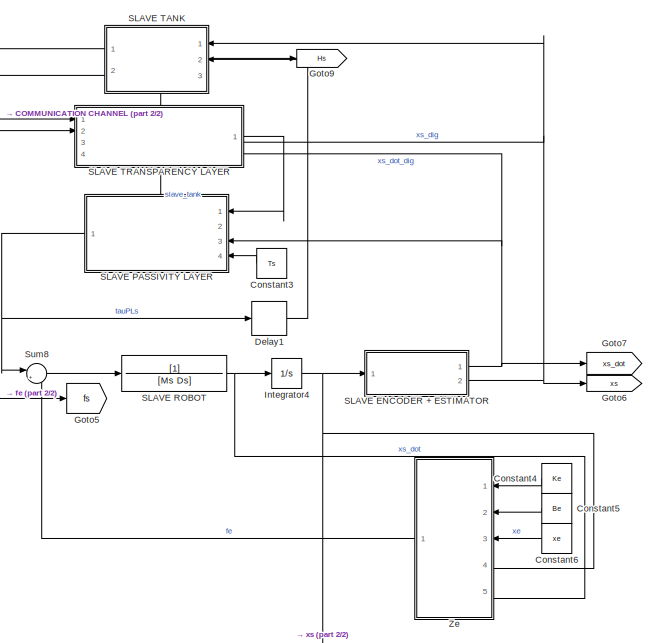
[diagram: root canvas - part 1/2, right side, full height]
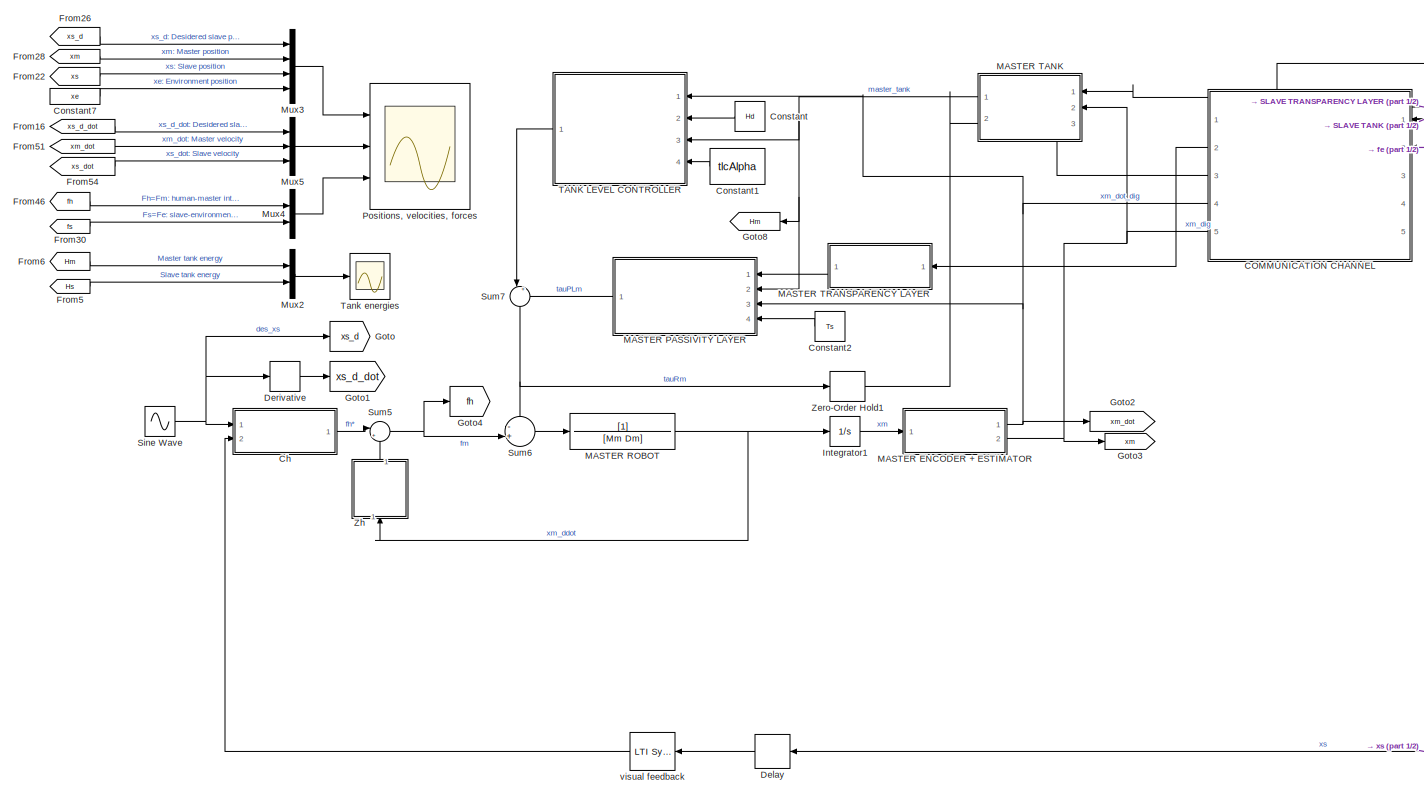
[diagram: root canvas - part 2/2, left side, full height]
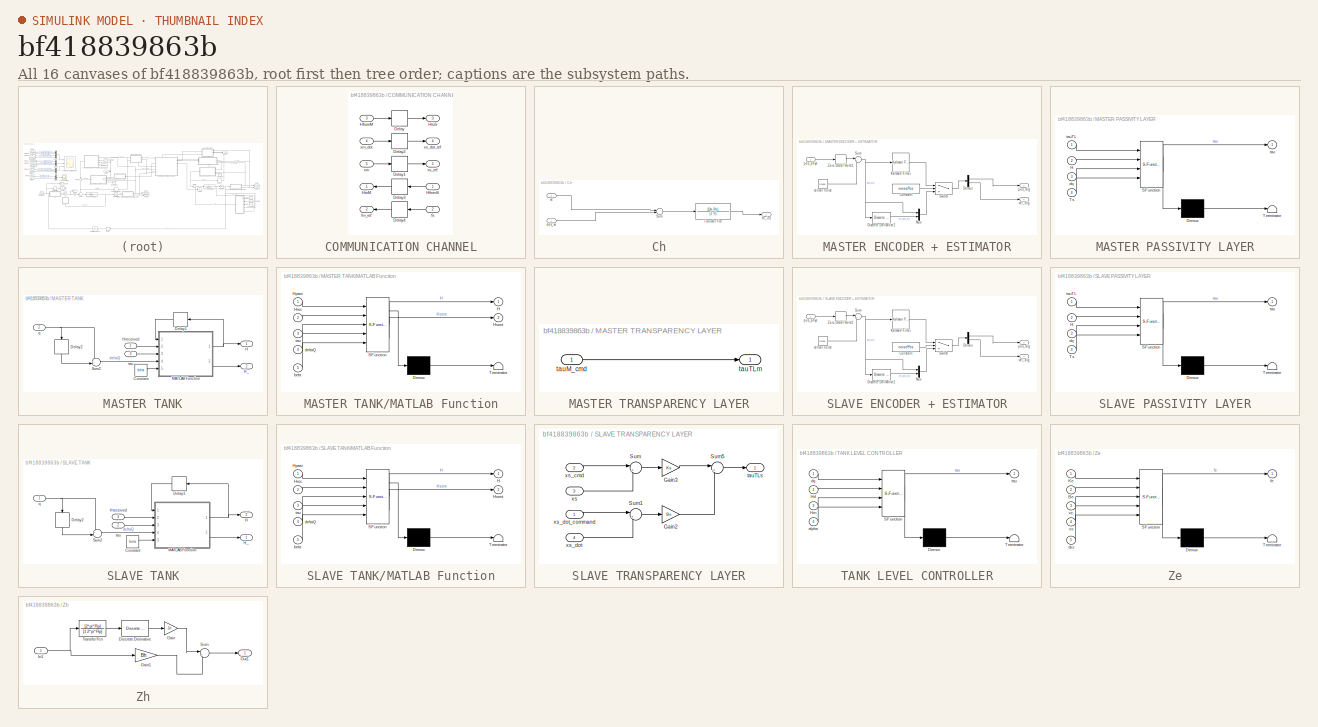
[diagram: thumbnail index - all 16 canvases of the model, root first then tree order]
MODEL slx_bf418839863b
KIND model
CONFIG AbsTol = auto
CONFIG EnableMultiTasking = off
CONFIG FixedStep = auto
CONFIG MaxStep = auto
CONFIG MinStep = auto
CONFIG RelTol = 1e-6
CONFIG SampleTimeConstraint = Unconstrained
CONFIG SolverName = VariableStepAuto
CONFIG StartTime = 0.0
CONFIG StopTime = 30
BLOCK [SubSystem] COMMUNICATION CHANNEL
  PortSchema = {"entries":[{"content":{"sides":[{"content":{"connectorIds":["In1","Out3","Out4","Out5","In2"]},"type":"ConnectorPlacement.EquallySpacedRectSide","uuid":"1c070cf8-9aa7-4f7b-8e2f-2632c2893f69"},{"content":{"connectorIds":["In3","Out1","Out2","In4","In5"],"side":"RIGHT"},"type":"ConnectorPlacement.EquallySpacedRectSide","uuid":"32173565-3523-4dfc-9820-763c87098354"},{"content":{"connectorIds":[],"si...<+436ch>
  Ports = [5, 5]
  RequestExecContextInheritance = off
BLOCK [Delay] COMMUNICATION CHANNEL/Delay
  DelayLength = d
  InputPortMap = u0
  Ports = [1, 1]
  SampleTime = Ts
BLOCK [Delay] COMMUNICATION CHANNEL/Delay1
  DelayLength = d
  InputPortMap = u0
  Ports = [1, 1]
  SampleTime = Ts
BLOCK [Delay] COMMUNICATION CHANNEL/Delay2
  DelayLength = d
  InputPortMap = u0
  Ports = [1, 1]
  SampleTime = Ts
BLOCK [Delay] COMMUNICATION CHANNEL/Delay3
  DelayLength = d
  InputPortMap = u0
  Ports = [1, 1]
  SampleTime = Ts
BLOCK [Delay] COMMUNICATION CHANNEL/Delay4
  DelayLength = d
  InputPortMap = u0
  Ports = [1, 1]
  SampleTime = Ts
BLOCK [Inport] COMMUNICATION CHANNEL/HfromM
  Port = 3
BLOCK [Inport] COMMUNICATION CHANNEL/HfromS
BLOCK [Outport] COMMUNICATION CHANNEL/HtoM
BLOCK [Outport] COMMUNICATION CHANNEL/HtoS
  Port = 3
BLOCK [Outport] COMMUNICATION CHANNEL/fm_ref
  Port = 2
BLOCK [Inport] COMMUNICATION CHANNEL/fs
  Port = 2
BLOCK [Inport] COMMUNICATION CHANNEL/xm
  Port = 5
BLOCK [Inport] COMMUNICATION CHANNEL/xm_dot
  Port = 4
BLOCK [Outport] COMMUNICATION CHANNEL/xs_dot_ref
  Port = 4
BLOCK [Outport] COMMUNICATION CHANNEL/xs_ref
  Port = 5
BLOCK [SubSystem] Ch
  Ports = [2, 1]
  RequestExecContextInheritance = off
BLOCK [Sum] Ch/Sum
  Inputs = |-+
  Ports = [2, 1]
BLOCK [TransferFcn] Ch/Transfer Fcn
  Denominator = [1 0]
  Numerator = [Dh Ph]
BLOCK [Inport] Ch/des_xs
BLOCK [Outport] Ch/fh_int
BLOCK [Inport] Ch/xs
  Port = 2
BLOCK [Constant] Constant
  NameLocation = top
  Value = Hd
BLOCK [Constant] Constant1
  NameLocation = top
  Value = tlcAlpha
BLOCK [Constant] Constant2
  Value = Ts
BLOCK [Constant] Constant3
  Value = Ts
BLOCK [Constant] Constant4
  NameLocation = top
  Value = Ke
BLOCK [Constant] Constant5
  NameLocation = top
  Value = Be
BLOCK [Constant] Constant6
  NameLocation = top
  Value = xe
BLOCK [Constant] Constant7
  Value = xe
BLOCK [Delay] Delay
  DelayLength = d
  InputPortMap = u0
  Ports = [1, 1]
  SampleTime = Ts
BLOCK [Delay] Delay1
  DelayLength = 1
  InputPortMap = u0
  Ports = [1, 1]
  SampleTime = Ts
BLOCK [Derivative] Derivative
BLOCK [From] From16
  GotoTag = xs_d_dot
BLOCK [From] From22
  GotoTag = xs
BLOCK [From] From26
  GotoTag = xs_d
BLOCK [From] From28
  GotoTag = xm
BLOCK [From] From30
  GotoTag = fs
BLOCK [From] From46
  GotoTag = fh
BLOCK [From] From5
  GotoTag = Hs
BLOCK [From] From51
  GotoTag = xm_dot
BLOCK [From] From54
  GotoTag = xs_dot
BLOCK [From] From6
  GotoTag = Hm
BLOCK [Goto] Goto
  GotoTag = xs_d
BLOCK [Goto] Goto1
  GotoTag = xs_d_dot
BLOCK [Goto] Goto2
  GotoTag = xm_dot
BLOCK [Goto] Goto3
  GotoTag = xm
BLOCK [Goto] Goto4
  GotoTag = fh
BLOCK [Goto] Goto5
  GotoTag = fs
BLOCK [Goto] Goto6
  GotoTag = xs
BLOCK [Goto] Goto7
  GotoTag = xs_dot
BLOCK [Goto] Goto8
  GotoTag = Hm
BLOCK [Goto] Goto9
  GotoTag = Hs
BLOCK [Integrator] Integrator1
  Ports = [1, 1]
BLOCK [Integrator] Integrator4
  Ports = [1, 1]
BLOCK [SubSystem] MASTER ENCODER + ESTIMATOR
  Ports = [1, 2]
  RequestExecContextInheritance = off
BLOCK [Constant] MASTER ENCODER + ESTIMATOR/Constant
  Value = noisePos
BLOCK [Demux] MASTER ENCODER + ESTIMATOR/Demux
  Outputs = 2
  Ports = [1, 2]
BLOCK [Reference] MASTER ENCODER + ESTIMATOR/Discrete Derivative2  REF=simulink/Discrete/Discrete Derivative
  Ports = [1, 1]
  SourceBlock = simulink/Discrete/Discrete Derivative
  SourceProductBaseCode = SL
  SourceType = Discrete Derivative
BLOCK [Reference] MASTER ENCODER + ESTIMATOR/Kalman Filter  REF=ctrlSharedLib/Kalman Filter
  Ports = [1, 1]
  SourceBlock = ctrlSharedLib/Kalman Filter
  SourceProductBaseCode = CT,ID
  SourceType = ctrlKalmanFilter
BLOCK [Mux] MASTER ENCODER + ESTIMATOR/Mux
  DisplayOption = bar
  Inputs = 2
  Ports = [2, 1]
BLOCK [Sum] MASTER ENCODER + ESTIMATOR/Sum
  Inputs = |++
  Ports = [2, 1]
BLOCK [Switch] MASTER ENCODER + ESTIMATOR/Switch
  Criteria = u2 > Threshold
  InputSameDT = off
  SaturateOnIntegerOverflow = off
BLOCK [ZeroOrderHold] MASTER ENCODER + ESTIMATOR/Zero-Order Hold1
  SampleTime = Ts
BLOCK [Outport] MASTER ENCODER + ESTIMATOR/pos_dig
  Port = 2
BLOCK [Inport] MASTER ENCODER + ESTIMATOR/pos_phys
BLOCK [RandomNumber] MASTER ENCODER + ESTIMATOR/sensor noise
  NameLocation = top
  SampleTime = Ts
  Variance = noisePos
BLOCK [Outport] MASTER ENCODER + ESTIMATOR/vel_dig
BLOCK [SubSystem] MASTER PASSIVITY LAYER
  ErrorFcn = Stateflow.Translate.translate
  PermitHierarchicalResolution = ExplicitOnly
  Ports = [4, 1]
  RequestExecContextInheritance = off
  SFBlockType = MATLAB Function
  TreatAsAtomicUnit = on
BLOCK [Demux] MASTER PASSIVITY LAYER/ Demux 
  Outputs = 1
  Ports = [1, 1]
BLOCK [S-Function] MASTER PASSIVITY LAYER/ SFunction 
  EnableBusSupport = on
  FunctionName = sf_sfun
  PortCounts = [4 2]
  Ports = [4, 2]
  SFcnIsStateOwnerBlock = off
  SFunctionDeploymentMode = off
  Tag = Stateflow S-Function 5
BLOCK [Terminator] MASTER PASSIVITY LAYER/ Terminator 
BLOCK [Inport] MASTER PASSIVITY LAYER/H
  Port = 2
BLOCK [Inport] MASTER PASSIVITY LAYER/Ts
  Port = 4
BLOCK [Inport] MASTER PASSIVITY LAYER/dq
  Port = 3
BLOCK [Outport] MASTER PASSIVITY LAYER/tau
BLOCK [Inport] MASTER PASSIVITY LAYER/tauTL
BLOCK [TransferFcn] MASTER ROBOT
  Denominator = [Mm Dm]
BLOCK [SubSystem] MASTER TANK
  PortSchema = {"entries":[{"content":{"sides":[{"content":{"connectorIds":["Out2","In1","In2"]},"type":"ConnectorPlacement.EquallySpacedRectSide","uuid":"482b0a11-f044-49fa-a74d-4dac8b5b787b"},{"content":{"connectorIds":["In3","Out1"],"side":"RIGHT"},"type":"ConnectorPlacement.EquallySpacedRectSide","uuid":"b0c369ed-ae40-43d8-b393-bca9f7720d62"},{"content":{"connectorIds":[],"side":"TOP"},"type":"ConnectorPlace...<+547ch>
  Ports = [3, 2]
  RequestExecContextInheritance = off
BLOCK [Constant] MASTER TANK/Constant
  Value = beta
BLOCK [Delay] MASTER TANK/Delay1
  DelayLength = 1
  InitialCondition = Hm_init
  InputPortMap = u0
  Ports = [1, 1]
  SampleTime = Ts
BLOCK [Delay] MASTER TANK/Delay2
  DelayLength = 1
  InputPortMap = u0
  NameLocation = left
  Ports = [1, 1]
  SampleTime = Ts
BLOCK [Outport] MASTER TANK/H
BLOCK [Outport] MASTER TANK/H_
  Port = 2
BLOCK [Inport] MASTER TANK/Hreceived
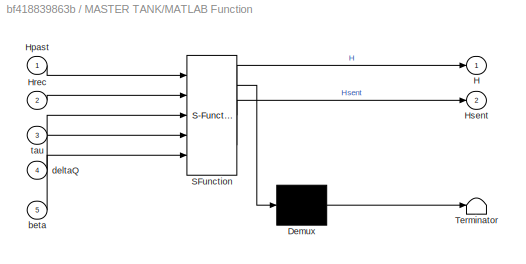
BLOCK [SubSystem] MASTER TANK/MATLAB Function
  ErrorFcn = Stateflow.Translate.translate
  PermitHierarchicalResolution = ExplicitOnly
  Ports = [5, 2]
  RequestExecContextInheritance = off
  SFBlockType = MATLAB Function
  TreatAsAtomicUnit = on
BLOCK [Demux] MASTER TANK/MATLAB Function/ Demux 
  Outputs = 1
  Ports = [1, 1]
BLOCK [S-Function] MASTER TANK/MATLAB Function/ SFunction 
  EnableBusSupport = on
  FunctionName = sf_sfun
  PortCounts = [5 3]
  Ports = [5, 3]
  SFcnIsStateOwnerBlock = off
  SFunctionDeploymentMode = off
  Tag = Stateflow S-Function 2
BLOCK [Terminator] MASTER TANK/MATLAB Function/ Terminator 
BLOCK [Outport] MASTER TANK/MATLAB Function/H
BLOCK [Inport] MASTER TANK/MATLAB Function/Hpast
BLOCK [Inport] MASTER TANK/MATLAB Function/Hrec
  Port = 2
BLOCK [Outport] MASTER TANK/MATLAB Function/Hsent
  Port = 2
BLOCK [Inport] MASTER TANK/MATLAB Function/beta
  Port = 5
BLOCK [Inport] MASTER TANK/MATLAB Function/deltaQ
  Port = 4
BLOCK [Inport] MASTER TANK/MATLAB Function/tau
  Port = 3
BLOCK [Sum] MASTER TANK/Sum2
  Inputs = +-|
  Ports = [2, 1]
BLOCK [Inport] MASTER TANK/q
  Port = 2
BLOCK [Inport] MASTER TANK/tau
  Port = 3
BLOCK [SubSystem] MASTER TRANSPARENCY LAYER
  Ports = [1, 1]
  RequestExecContextInheritance = off
BLOCK [Inport] MASTER TRANSPARENCY LAYER/tauM_cmd
BLOCK [Outport] MASTER TRANSPARENCY LAYER/tauTLm
BLOCK [Mux] Mux2
  DisplayOption = bar
  Inputs = 2
  Ports = [2, 1]
BLOCK [Mux] Mux3
  DisplayOption = bar
  Ports = [4, 1]
BLOCK [Mux] Mux4
  DisplayOption = bar
  Inputs = 2
  Ports = [2, 1]
BLOCK [Mux] Mux5
  DisplayOption = bar
  Inputs = 3
  Ports = [3, 1]
BLOCK [Scope] Positions, velocities, forces
  Floating = off
  NumInputPorts = 3
  Ports = [3]
  ScopeSpecificationString = Simulink.scopes.TimeScopeBlockCfg('CurrentConfiguration', extmgr.ConfigurationSet(extmgr.Configuration('Core','General UI',true),extmgr.Configuration('Core','Source UI',true),extmgr.Configuration('Sources','WiredSimulink',true,'DataLogging',true,'SampleTime','Ts'),extmgr.Configuration('Visuals','Time Domain',true,'SerializedDisplays',{struct('MinYLimReal','-1.3436','MaxYLimReal','1.81596','YLabelR...<+3697ch>
BLOCK [SubSystem] SLAVE ENCODER + ESTIMATOR
  Ports = [1, 2]
  RequestExecContextInheritance = off
BLOCK [Constant] SLAVE ENCODER + ESTIMATOR/Constant
  Value = noisePos
BLOCK [Demux] SLAVE ENCODER + ESTIMATOR/Demux
  Outputs = 2
  Ports = [1, 2]
BLOCK [Reference] SLAVE ENCODER + ESTIMATOR/Discrete Derivative2  REF=simulink/Discrete/Discrete Derivative
  Ports = [1, 1]
  SourceBlock = simulink/Discrete/Discrete Derivative
  SourceProductBaseCode = SL
  SourceType = Discrete Derivative
BLOCK [Reference] SLAVE ENCODER + ESTIMATOR/Kalman Filter  REF=ctrlSharedLib/Kalman Filter
  Ports = [1, 1]
  SourceBlock = ctrlSharedLib/Kalman Filter
  SourceProductBaseCode = CT,ID
  SourceType = ctrlKalmanFilter
BLOCK [Mux] SLAVE ENCODER + ESTIMATOR/Mux
  DisplayOption = bar
  Inputs = 2
  Ports = [2, 1]
BLOCK [Sum] SLAVE ENCODER + ESTIMATOR/Sum
  Inputs = |++
  Ports = [2, 1]
BLOCK [Switch] SLAVE ENCODER + ESTIMATOR/Switch
  Criteria = u2 > Threshold
  InputSameDT = off
  SaturateOnIntegerOverflow = off
BLOCK [ZeroOrderHold] SLAVE ENCODER + ESTIMATOR/Zero-Order Hold1
  SampleTime = Ts
BLOCK [Outport] SLAVE ENCODER + ESTIMATOR/pos_dig
  Port = 2
BLOCK [Inport] SLAVE ENCODER + ESTIMATOR/pos_phys
BLOCK [RandomNumber] SLAVE ENCODER + ESTIMATOR/sensor noise
  NameLocation = top
  SampleTime = Ts
  Variance = noisePos
BLOCK [Outport] SLAVE ENCODER + ESTIMATOR/vel_dig
BLOCK [SubSystem] SLAVE PASSIVITY LAYER
  ErrorFcn = Stateflow.Translate.translate
  PermitHierarchicalResolution = ExplicitOnly
  Ports = [4, 1]
  RequestExecContextInheritance = off
  SFBlockType = MATLAB Function
  TreatAsAtomicUnit = on
BLOCK [Demux] SLAVE PASSIVITY LAYER/ Demux 
  Outputs = 1
  Ports = [1, 1]
BLOCK [S-Function] SLAVE PASSIVITY LAYER/ SFunction 
  EnableBusSupport = on
  FunctionName = sf_sfun
  PortCounts = [4 2]
  Ports = [4, 2]
  SFcnIsStateOwnerBlock = off
  SFunctionDeploymentMode = off
  Tag = Stateflow S-Function 4
BLOCK [Terminator] SLAVE PASSIVITY LAYER/ Terminator 
BLOCK [Inport] SLAVE PASSIVITY LAYER/H
  Port = 2
BLOCK [Inport] SLAVE PASSIVITY LAYER/Ts
  Port = 4
BLOCK [Inport] SLAVE PASSIVITY LAYER/dq
  Port = 3
BLOCK [Outport] SLAVE PASSIVITY LAYER/tau
BLOCK [Inport] SLAVE PASSIVITY LAYER/tauTL
BLOCK [TransferFcn] SLAVE ROBOT
  Denominator = [Ms Ds]
BLOCK [SubSystem] SLAVE TANK
  PortSchema = {"entries":[{"content":{"sides":[{"content":{"connectorIds":["In1","Out2","In2"]},"type":"ConnectorPlacement.EquallySpacedRectSide","uuid":"482b0a11-f044-49fa-a74d-4dac8b5b787b"},{"content":{"connectorIds":["Out1","In3"],"side":"RIGHT"},"type":"ConnectorPlacement.EquallySpacedRectSide","uuid":"b0c369ed-ae40-43d8-b393-bca9f7720d62"},{"content":{"connectorIds":[],"side":"TOP"},"type":"ConnectorPlace...<+547ch>
  Ports = [3, 2]
  RequestExecContextInheritance = off
BLOCK [Constant] SLAVE TANK/Constant
  Value = beta
BLOCK [Delay] SLAVE TANK/Delay1
  DelayLength = 1
  InitialCondition = Hs_init
  InputPortMap = u0
  Ports = [1, 1]
  SampleTime = Ts
BLOCK [Delay] SLAVE TANK/Delay2
  DelayLength = 1
  InputPortMap = u0
  NameLocation = left
  Ports = [1, 1]
  SampleTime = Ts
BLOCK [Outport] SLAVE TANK/H
  Port = 2
BLOCK [Outport] SLAVE TANK/H_
BLOCK [Inport] SLAVE TANK/Hreceived
  Port = 3
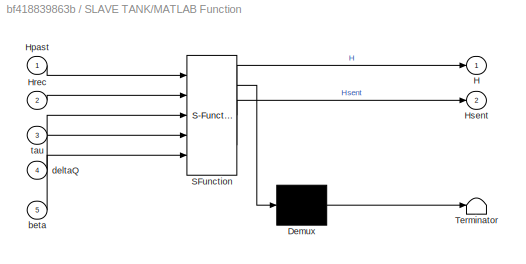
BLOCK [SubSystem] SLAVE TANK/MATLAB Function
  ErrorFcn = Stateflow.Translate.translate
  PermitHierarchicalResolution = ExplicitOnly
  Ports = [5, 2]
  RequestExecContextInheritance = off
  SFBlockType = MATLAB Function
  TreatAsAtomicUnit = on
BLOCK [Demux] SLAVE TANK/MATLAB Function/ Demux 
  Outputs = 1
  Ports = [1, 1]
BLOCK [S-Function] SLAVE TANK/MATLAB Function/ SFunction 
  EnableBusSupport = on
  FunctionName = sf_sfun
  PortCounts = [5 3]
  Ports = [5, 3]
  SFcnIsStateOwnerBlock = off
  SFunctionDeploymentMode = off
  Tag = Stateflow S-Function 3
BLOCK [Terminator] SLAVE TANK/MATLAB Function/ Terminator 
BLOCK [Outport] SLAVE TANK/MATLAB Function/H
BLOCK [Inport] SLAVE TANK/MATLAB Function/Hpast
BLOCK [Inport] SLAVE TANK/MATLAB Function/Hrec
  Port = 2
BLOCK [Outport] SLAVE TANK/MATLAB Function/Hsent
  Port = 2
BLOCK [Inport] SLAVE TANK/MATLAB Function/beta
  Port = 5
BLOCK [Inport] SLAVE TANK/MATLAB Function/deltaQ
  Port = 4
BLOCK [Inport] SLAVE TANK/MATLAB Function/tau
  Port = 3
BLOCK [Sum] SLAVE TANK/Sum2
  Inputs = +-|
  Ports = [2, 1]
BLOCK [Inport] SLAVE TANK/q
BLOCK [Inport] SLAVE TANK/tau
  Port = 2
BLOCK [SubSystem] SLAVE TRANSPARENCY LAYER
  PortSchema = {"entries":[{"content":{"sides":[{"content":{"connectorIds":["In1","In2"]},"type":"ConnectorPlacement.EquallySpacedRectSide","uuid":"c8f256d1-8287-4bc6-9264-40c0684f6acd"},{"content":{"connectorIds":["Out1","In3","In4"],"side":"RIGHT"},"type":"ConnectorPlacement.EquallySpacedRectSide","uuid":"cb9f571e-93fc-426e-a4f2-aa96ae3bd6b3"},{"content":{"connectorIds":[],"side":"TOP"},"type":"ConnectorPlacem...<+402ch>
  Ports = [4, 1]
  RequestExecContextInheritance = off
BLOCK [Gain] SLAVE TRANSPARENCY LAYER/Gain2
  Gain = Bs
BLOCK [Gain] SLAVE TRANSPARENCY LAYER/Gain3
  Gain = Ks
BLOCK [Sum] SLAVE TRANSPARENCY LAYER/Sum
  Inputs = |+-
  Ports = [2, 1]
BLOCK [Sum] SLAVE TRANSPARENCY LAYER/Sum1
  Inputs = |+-
  Ports = [2, 1]
BLOCK [Sum] SLAVE TRANSPARENCY LAYER/Sum5
  Inputs = |++
  Ports = [2, 1]
BLOCK [Outport] SLAVE TRANSPARENCY LAYER/tauTLs
BLOCK [Inport] SLAVE TRANSPARENCY LAYER/xs
  Port = 3
BLOCK [Inport] SLAVE TRANSPARENCY LAYER/xs_cmd
  Port = 2
BLOCK [Inport] SLAVE TRANSPARENCY LAYER/xs_dot
  Port = 4
BLOCK [Inport] SLAVE TRANSPARENCY LAYER/xs_dot_command
BLOCK [Sin] Sine Wave
  Amplitude = A
  Frequency = Fc
  Ports = [0, 1]
  SampleTime = 0
BLOCK [Sum] Sum5
  Inputs = |+-
  Ports = [2, 1]
BLOCK [Sum] Sum6
  Inputs = -+|
  NameLocation = top
  Ports = [2, 1]
BLOCK [Sum] Sum7
  Inputs = |++
  NameLocation = right
  Ports = [2, 1]
BLOCK [Sum] Sum8
  Inputs = |+-
  Ports = [2, 1]
BLOCK [SubSystem] TANK LEVEL CONTROLLER
  ErrorFcn = Stateflow.Translate.translate
  PermitHierarchicalResolution = ExplicitOnly
  Ports = [4, 1]
  RequestExecContextInheritance = off
  SFBlockType = MATLAB Function
  TreatAsAtomicUnit = on
BLOCK [Demux] TANK LEVEL CONTROLLER/ Demux 
  Outputs = 1
  Ports = [1, 1]
BLOCK [S-Function] TANK LEVEL CONTROLLER/ SFunction 
  EnableBusSupport = on
  FunctionName = sf_sfun
  PortCounts = [4 2]
  Ports = [4, 2]
  SFcnIsStateOwnerBlock = off
  SFunctionDeploymentMode = off
  Tag = Stateflow S-Function 1
BLOCK [Terminator] TANK LEVEL CONTROLLER/ Terminator 
BLOCK [Inport] TANK LEVEL CONTROLLER/Hd
  Port = 2
BLOCK [Inport] TANK LEVEL CONTROLLER/Hm
  Port = 3
BLOCK [Inport] TANK LEVEL CONTROLLER/alpha
  Port = 4
BLOCK [Inport] TANK LEVEL CONTROLLER/dq
BLOCK [Outport] TANK LEVEL CONTROLLER/tau
BLOCK [Scope] Tank energies
  Floating = off
  NumInputPorts = 1
  Ports = [1]
  ScopeSpecificationString = Simulink.scopes.TimeScopeBlockCfg('CurrentConfiguration', extmgr.ConfigurationSet(extmgr.Configuration('Core','General UI',true),extmgr.Configuration('Core','Source UI',true),extmgr.Configuration('Sources','WiredSimulink',true,'DataLogging',true,'SampleTime','Ts','DataLoggingVariableName','ScopeData1'),extmgr.Configuration('Visuals','Time Domain',true,'SerializedDisplays',{struct('MinYLimReal','-0...<+1775ch>
BLOCK [SubSystem] Ze
  ErrorFcn = Stateflow.Translate.translate
  NameLocation = top
  PermitHierarchicalResolution = ExplicitOnly
  Ports = [5, 1]
  RequestExecContextInheritance = off
  SFBlockType = MATLAB Function
  TreatAsAtomicUnit = on
BLOCK [Demux] Ze/ Demux 
  Outputs = 1
  Ports = [1, 1]
BLOCK [S-Function] Ze/ SFunction 
  EnableBusSupport = on
  FunctionName = sf_sfun
  PortCounts = [5 2]
  Ports = [5, 2]
  SFcnIsStateOwnerBlock = off
  SFunctionDeploymentMode = off
  Tag = Stateflow S-Function 10
BLOCK [Terminator] Ze/ Terminator 
BLOCK [Inport] Ze/Be
  Port = 2
BLOCK [Inport] Ze/Ke
BLOCK [Inport] Ze/dxs
  Port = 5
BLOCK [Outport] Ze/fe
BLOCK [Inport] Ze/xe
  Port = 3
BLOCK [Inport] Ze/xs
  Port = 4
BLOCK [ZeroOrderHold] Zero-Order Hold1
  SampleTime = Ts
BLOCK [SubSystem] Zh
  NameLocation = right
  Ports = [1, 1]
  RequestExecContextInheritance = off
BLOCK [Reference] Zh/Discrete Derivative  REF=simulink/Discrete/Discrete Derivative
  Ports = [1, 1]
  SourceBlock = simulink/Discrete/Discrete Derivative
  SourceProductBaseCode = SL
  SourceType = Discrete Derivative
BLOCK [Gain] Zh/Gain
  Gain = Jh
BLOCK [Gain] Zh/Gain1
  Gain = Bh
BLOCK [Inport] Zh/In1
BLOCK [Outport] Zh/Out1
BLOCK [Sum] Zh/Sum
  Inputs = |++
  Ports = [2, 1]
BLOCK [TransferFcn] Zh/Transfer Fcn
  Denominator = [1 2*pi*Flp]
  Numerator = [2*pi*Flp]
BLOCK [Reference] visual feedback  REF=cstblocks/LTI System
  Ports = [1, 1]
  SourceBlock = cstblocks/LTI System
  SourceProductBaseCode = CT
  SourceType = LTI Block
LINE COMMUNICATION CHANNEL/Delay1:1 -> COMMUNICATION CHANNEL/xs_ref:1
LINE COMMUNICATION CHANNEL/Delay2:1 -> COMMUNICATION CHANNEL/xs_dot_ref:1
LINE COMMUNICATION CHANNEL/Delay3:1 -> COMMUNICATION CHANNEL/HtoM:1
LINE COMMUNICATION CHANNEL/Delay4:1 -> COMMUNICATION CHANNEL/fm_ref:1
LINE COMMUNICATION CHANNEL/Delay:1 -> COMMUNICATION CHANNEL/HtoS:1
LINE COMMUNICATION CHANNEL/HfromM:1 -> COMMUNICATION CHANNEL/Delay:1
LINE COMMUNICATION CHANNEL/HfromS:1 -> COMMUNICATION CHANNEL/Delay3:1
LINE COMMUNICATION CHANNEL/fs:1 -> COMMUNICATION CHANNEL/Delay4:1
LINE COMMUNICATION CHANNEL/xm:1 -> COMMUNICATION CHANNEL/Delay1:1
LINE COMMUNICATION CHANNEL/xm_dot:1 -> COMMUNICATION CHANNEL/Delay2:1
LINE COMMUNICATION CHANNEL:1 -> MASTER TANK:1
LINE COMMUNICATION CHANNEL:2 -> MASTER TRANSPARENCY LAYER:1
LINE COMMUNICATION CHANNEL:3 -> SLAVE TANK:3
LINE COMMUNICATION CHANNEL:4 -> SLAVE TRANSPARENCY LAYER:1
LINE COMMUNICATION CHANNEL:5 -> SLAVE TRANSPARENCY LAYER:2
LINE Ch/Sum:1 -> Ch/Transfer Fcn:1
LINE Ch/Transfer Fcn:1 -> Ch/fh_int:1
LINE Ch/des_xs:1 -> Ch/Sum:2
LINE Ch/xs:1 -> Ch/Sum:1
LINE Ch:1 -> Sum5:1
LINE Constant1:1 -> TANK LEVEL CONTROLLER:4
LINE Constant2:1 -> MASTER PASSIVITY LAYER:4
LINE Constant3:1 -> SLAVE PASSIVITY LAYER:4
LINE Constant4:1 -> Ze:1
LINE Constant5:1 -> Ze:2
LINE Constant6:1 -> Ze:3
LINE Constant7:1 -> Mux3:4
LINE Constant:1 -> TANK LEVEL CONTROLLER:2
LINE Delay1:1 -> SLAVE TANK:2
LINE Delay:1 -> visual feedback:1
LINE Derivative:1 -> Goto1:1
LINE From16:1 -> Mux5:1
LINE From22:1 -> Mux3:3
LINE From26:1 -> Mux3:1
LINE From28:1 -> Mux3:2
LINE From30:1 -> Mux4:2
LINE From46:1 -> Mux4:1
LINE From51:1 -> Mux5:2
LINE From54:1 -> Mux5:3
LINE From5:1 -> Mux2:2
LINE From6:1 -> Mux2:1
LINE Integrator1:1 -> MASTER ENCODER + ESTIMATOR:1
NET Integrator4:1 -> Delay:1, SLAVE ENCODER + ESTIMATOR:1, Ze:4
LINE MASTER ENCODER + ESTIMATOR/Constant:1 -> MASTER ENCODER + ESTIMATOR/Switch:2
LINE MASTER ENCODER + ESTIMATOR/Demux:1 -> MASTER ENCODER + ESTIMATOR/pos_dig:1
LINE MASTER ENCODER + ESTIMATOR/Demux:2 -> MASTER ENCODER + ESTIMATOR/vel_dig:1
LINE MASTER ENCODER + ESTIMATOR/Discrete Derivative2:1 -> MASTER ENCODER + ESTIMATOR/Mux:2
LINE MASTER ENCODER + ESTIMATOR/Kalman Filter:1 -> MASTER ENCODER + ESTIMATOR/Switch:1
LINE MASTER ENCODER + ESTIMATOR/Mux:1 -> MASTER ENCODER + ESTIMATOR/Switch:3
NET MASTER ENCODER + ESTIMATOR/Sum:1 -> MASTER ENCODER + ESTIMATOR/Discrete Derivative2:1, MASTER ENCODER + ESTIMATOR/Kalman Filter:1, MASTER ENCODER + ESTIMATOR/Mux:1
LINE MASTER ENCODER + ESTIMATOR/Switch:1 -> MASTER ENCODER + ESTIMATOR/Demux:1
LINE MASTER ENCODER + ESTIMATOR/Zero-Order Hold1:1 -> MASTER ENCODER + ESTIMATOR/Sum:1
LINE MASTER ENCODER + ESTIMATOR/pos_phys:1 -> MASTER ENCODER + ESTIMATOR/Zero-Order Hold1:1
LINE MASTER ENCODER + ESTIMATOR/sensor noise:1 -> MASTER ENCODER + ESTIMATOR/Sum:2
NET MASTER ENCODER + ESTIMATOR:1 -> COMMUNICATION CHANNEL:4, Goto2:1, MASTER PASSIVITY LAYER:3, TANK LEVEL CONTROLLER:1
NET MASTER ENCODER + ESTIMATOR:2 -> COMMUNICATION CHANNEL:5, Goto3:1, MASTER TANK:2
LINE MASTER PASSIVITY LAYER:1 -> Sum7:2
NET MASTER ROBOT:1 -> Integrator1:1, Zh:1
LINE MASTER TANK/Constant:1 -> MASTER TANK/MATLAB Function:5
LINE MASTER TANK/Delay1:1 -> MASTER TANK/MATLAB Function:1
LINE MASTER TANK/Delay2:1 -> MASTER TANK/Sum2:2
LINE MASTER TANK/Hreceived:1 -> MASTER TANK/MATLAB Function:2
NET MASTER TANK/MATLAB Function:1 -> MASTER TANK/Delay1:1, MASTER TANK/H:1
LINE MASTER TANK/MATLAB Function:2 -> MASTER TANK/H_:1
LINE MASTER TANK/Sum2:1 -> MASTER TANK/MATLAB Function:4
NET MASTER TANK/q:1 -> MASTER TANK/Delay2:1, MASTER TANK/Sum2:1
LINE MASTER TANK/tau:1 -> MASTER TANK/MATLAB Function:3
NET MASTER TANK:1 -> Goto8:1, MASTER PASSIVITY LAYER:2, TANK LEVEL CONTROLLER:3
LINE MASTER TANK:2 -> COMMUNICATION CHANNEL:3
LINE MASTER TRANSPARENCY LAYER/tauM_cmd:1 -> MASTER TRANSPARENCY LAYER/tauTLm:1
LINE MASTER TRANSPARENCY LAYER:1 -> MASTER PASSIVITY LAYER:1
LINE Mux2:1 -> Tank energies:1
LINE Mux3:1 -> Positions, velocities, forces:1
LINE Mux4:1 -> Positions, velocities, forces:3
LINE Mux5:1 -> Positions, velocities, forces:2
LINE SLAVE ENCODER + ESTIMATOR/Constant:1 -> SLAVE ENCODER + ESTIMATOR/Switch:2
LINE SLAVE ENCODER + ESTIMATOR/Demux:1 -> SLAVE ENCODER + ESTIMATOR/pos_dig:1
LINE SLAVE ENCODER + ESTIMATOR/Demux:2 -> SLAVE ENCODER + ESTIMATOR/vel_dig:1
LINE SLAVE ENCODER + ESTIMATOR/Discrete Derivative2:1 -> SLAVE ENCODER + ESTIMATOR/Mux:2
LINE SLAVE ENCODER + ESTIMATOR/Kalman Filter:1 -> SLAVE ENCODER + ESTIMATOR/Switch:1
LINE SLAVE ENCODER + ESTIMATOR/Mux:1 -> SLAVE ENCODER + ESTIMATOR/Switch:3
NET SLAVE ENCODER + ESTIMATOR/Sum:1 -> SLAVE ENCODER + ESTIMATOR/Discrete Derivative2:1, SLAVE ENCODER + ESTIMATOR/Kalman Filter:1, SLAVE ENCODER + ESTIMATOR/Mux:1
LINE SLAVE ENCODER + ESTIMATOR/Switch:1 -> SLAVE ENCODER + ESTIMATOR/Demux:1
LINE SLAVE ENCODER + ESTIMATOR/Zero-Order Hold1:1 -> SLAVE ENCODER + ESTIMATOR/Sum:1
LINE SLAVE ENCODER + ESTIMATOR/pos_phys:1 -> SLAVE ENCODER + ESTIMATOR/Zero-Order Hold1:1
LINE SLAVE ENCODER + ESTIMATOR/sensor noise:1 -> SLAVE ENCODER + ESTIMATOR/Sum:2
NET SLAVE ENCODER + ESTIMATOR:1 -> Goto7:1, SLAVE PASSIVITY LAYER:3, SLAVE TRANSPARENCY LAYER:4
NET SLAVE ENCODER + ESTIMATOR:2 -> Goto6:1, SLAVE TANK:1, SLAVE TRANSPARENCY LAYER:3
NET SLAVE PASSIVITY LAYER:1 -> Delay1:1, Sum8:1
NET SLAVE ROBOT:1 -> Integrator4:1, Ze:5
LINE SLAVE TANK/Constant:1 -> SLAVE TANK/MATLAB Function:5
LINE SLAVE TANK/Delay1:1 -> SLAVE TANK/MATLAB Function:1
LINE SLAVE TANK/Delay2:1 -> SLAVE TANK/Sum2:2
LINE SLAVE TANK/Hreceived:1 -> SLAVE TANK/MATLAB Function:2
NET SLAVE TANK/MATLAB Function:1 -> SLAVE TANK/Delay1:1, SLAVE TANK/H:1
LINE SLAVE TANK/MATLAB Function:2 -> SLAVE TANK/H_:1
LINE SLAVE TANK/Sum2:1 -> SLAVE TANK/MATLAB Function:4
NET SLAVE TANK/q:1 -> SLAVE TANK/Delay2:1, SLAVE TANK/Sum2:1
LINE SLAVE TANK/tau:1 -> SLAVE TANK/MATLAB Function:3
LINE SLAVE TANK:1 -> COMMUNICATION CHANNEL:1
NET SLAVE TANK:2 -> Goto9:1, SLAVE PASSIVITY LAYER:2
LINE SLAVE TRANSPARENCY LAYER/Gain2:1 -> SLAVE TRANSPARENCY LAYER/Sum5:2
LINE SLAVE TRANSPARENCY LAYER/Gain3:1 -> SLAVE TRANSPARENCY LAYER/Sum5:1
LINE SLAVE TRANSPARENCY LAYER/Sum1:1 -> SLAVE TRANSPARENCY LAYER/Gain2:1
LINE SLAVE TRANSPARENCY LAYER/Sum5:1 -> SLAVE TRANSPARENCY LAYER/tauTLs:1
LINE SLAVE TRANSPARENCY LAYER/Sum:1 -> SLAVE TRANSPARENCY LAYER/Gain3:1
LINE SLAVE TRANSPARENCY LAYER/xs:1 -> SLAVE TRANSPARENCY LAYER/Sum:2
LINE SLAVE TRANSPARENCY LAYER/xs_cmd:1 -> SLAVE TRANSPARENCY LAYER/Sum:1
LINE SLAVE TRANSPARENCY LAYER/xs_dot:1 -> SLAVE TRANSPARENCY LAYER/Sum1:2
LINE SLAVE TRANSPARENCY LAYER/xs_dot_command:1 -> SLAVE TRANSPARENCY LAYER/Sum1:1
LINE SLAVE TRANSPARENCY LAYER:1 -> SLAVE PASSIVITY LAYER:1
NET Sine Wave:1 -> Ch:1, Derivative:1, Goto:1
NET Sum5:1 -> Goto4:1, Sum6:2
LINE Sum6:1 -> MASTER ROBOT:1
NET Sum7:1 -> Sum6:1, Zero-Order Hold1:1
LINE Sum8:1 -> SLAVE ROBOT:1
LINE TANK LEVEL CONTROLLER:1 -> Sum7:1
NET Ze:1 -> COMMUNICATION CHANNEL:2, Goto5:1, Sum8:2
LINE Zero-Order Hold1:1 -> MASTER TANK:3
LINE Zh/Discrete Derivative:1 -> Zh/Gain:1
LINE Zh/Gain1:1 -> Zh/Sum:2
LINE Zh/Gain:1 -> Zh/Sum:1
NET Zh/In1:1 -> Zh/Gain1:1, Zh/Transfer Fcn:1
LINE Zh/Sum:1 -> Zh/Out1:1
LINE Zh/Transfer Fcn:1 -> Zh/Discrete Derivative:1
LINE Zh:1 -> Sum5:2
LINE visual feedback:1 -> Ch:2
note: NET lines group one-source signal fan-out (src -> all destinations, sorted); 1:1 wires keep LINE
CHART TANK LEVEL CONTROLLER states=1 transitions=1
  STATE_LABEL 'eML_blk_kernel()'
  STATE_LABEL 'SCRIPT:\nfunction tau = TLC(dq, Hd, Hm, alpha)\n% Slide 16\nif Hd <= Hm\n    d = 0;\nelse\n    d = alpha*(Hd-Hm);\nend\ntau = -d*dq;'
CHART MASTER TANK/MATLAB Function states=1 transitions=1
  STATE_LABEL 'eML_blk_kernel()'
  STATE_LABEL 'SCRIPT:\nfunction [H,Hsent] = tank(Hpast, Hrec, tau, deltaQ, beta)\nHused = tau*deltaQ;\nH = Hpast+Hrec-Hused; % Slide 13\nHsent = H*beta; % Slide 17\nH = H-Hsent; % H k+1'
CHART SLAVE TANK/MATLAB Function states=1 transitions=1
  STATE_LABEL 'eML_blk_kernel()'
  STATE_LABEL 'SCRIPT:\nfunction [H,Hsent] = tank(Hpast, Hrec, tau, deltaQ, beta)\nHused = tau*deltaQ;\nH = Hpast+Hrec-Hused; % Slide 13\nHsent = H*beta; % Slide 17\nH = H-Hsent; % H k+1'
CHART SLAVE PASSIVITY LAYER states=1 transitions=1
  STATE_LABEL 'eML_blk_kernel()'
  STATE_LABEL 'SCRIPT:\nfunction tau = tauPL(tauTL, H, dq,Ts)\n% Slide 19\nif H<= 0\n    tauMax1 = 0;\nelse\n    tauMax1 = tauTL;\nend\ntauMax2 = H/(dq*Ts);\n% Saturated control torque\ntau = sign(tauTL)*min([abs(tauMax1),abs(tauMax2)]);\n'
CHART MASTER PASSIVITY LAYER states=1 transitions=1
  STATE_LABEL 'eML_blk_kernel()'
  STATE_LABEL 'SCRIPT:\nfunction tau = PL(tauTL, H, dq,Ts)\n% Slide 19\nif H<= 0\n    tauMax1 = 0;\nelse\n    tauMax1 = tauTL;\nend\ntauMax2 = H/(dq*Ts);\n% Saturated control torque\ntau = sign(tauTL)*min([abs(tauMax1),abs(tauMax2)]);\n'
CHART Ze states=1 transitions=1
  STATE_LABEL 'eML_blk_kernel()'
  STATE_LABEL 'SCRIPT:\nfunction fe = env(Ke, Be, xe, xs, dxs)\n    if xs > xe\n        fe = Ke*(xs-xe)+Be*max(dxs, 0);\n    else\n        fe = 0;\n    end\n\n'
CHART  states=0 transitions=0
CHART  states=0 transitions=0
CHART  states=0 transitions=0
CHART  states=0 transitions=0
CHART  states=0 transitions=0
CHART  states=0 transitions=0
